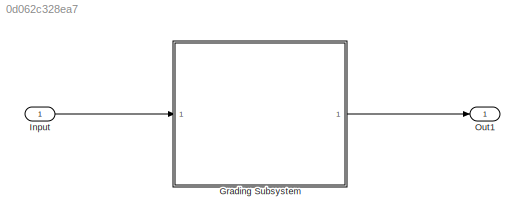
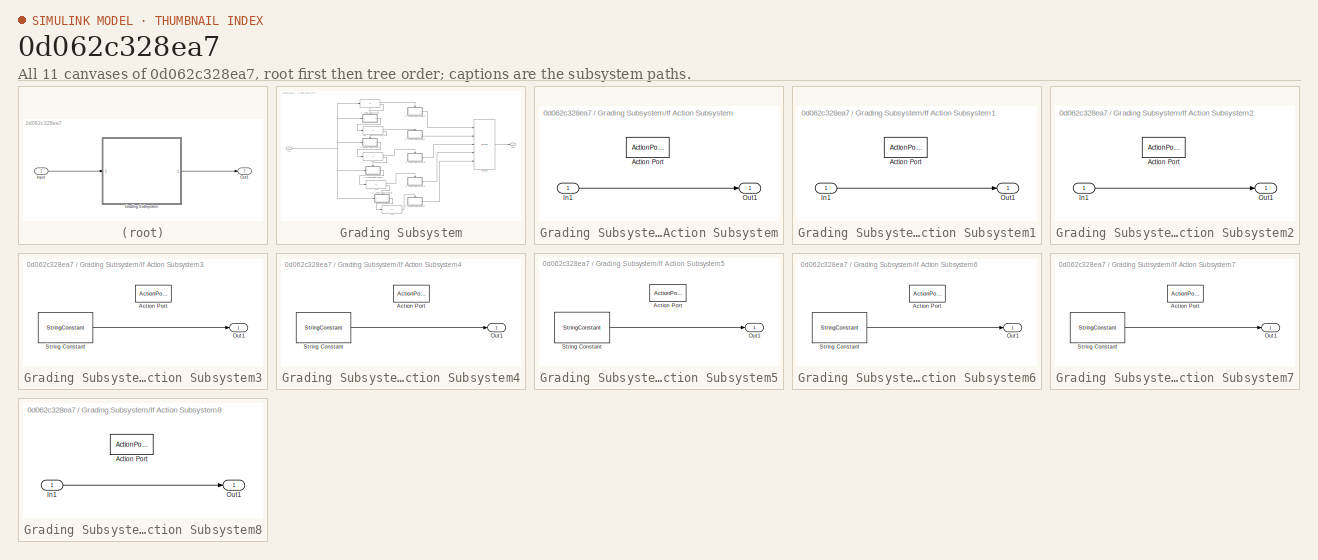
[diagram: thumbnail index - all 11 canvases of the model, root first then tree order]
MODEL slx_0d062c328ea7
KIND model
CONFIG AbsTol = auto
CONFIG EnableMultiTasking = off
CONFIG FixedStep = auto
CONFIG MaxStep = auto
CONFIG MinStep = auto
CONFIG RelTol = 1e-3
CONFIG SampleTimeConstraint = Unconstrained
CONFIG SolverName = VariableStepAuto
CONFIG StartTime = 0.0
CONFIG StopTime = 10.0
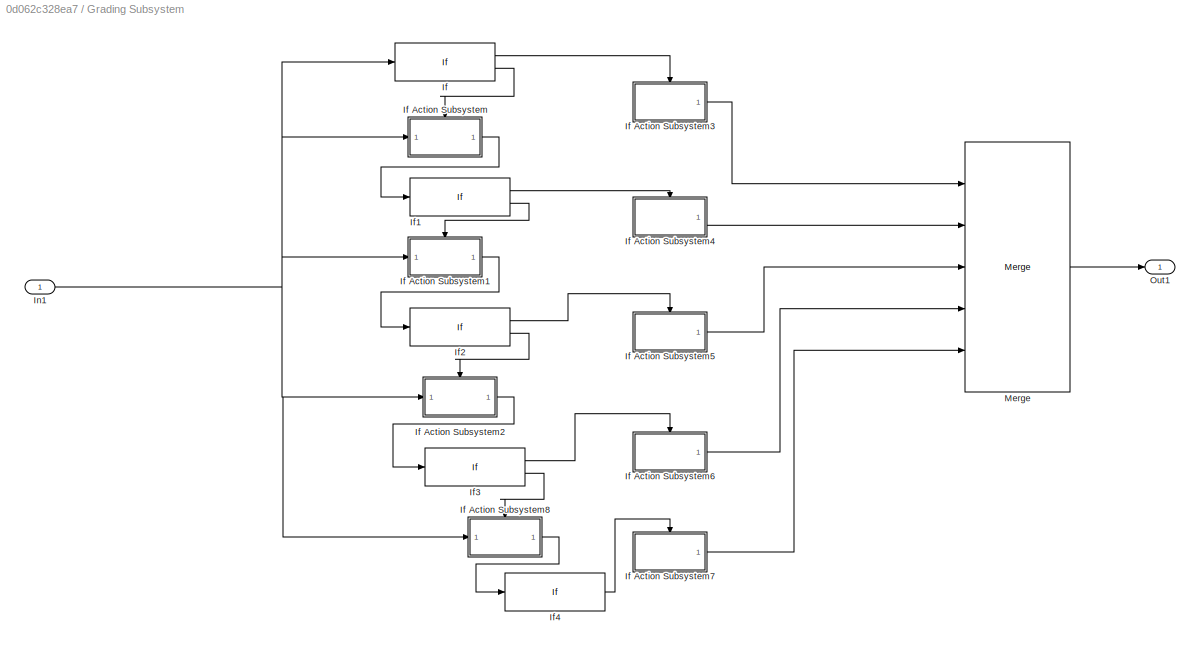
BLOCK [SubSystem] Grading Subsystem
  Ports = [1, 1]
  RequestExecContextInheritance = off
BLOCK [If] Grading Subsystem/If
  IfExpression = u1 >=90
  Ports = [1, 2]
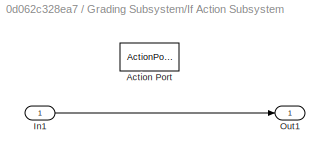
BLOCK [SubSystem] Grading Subsystem/If Action Subsystem
  Ports = [1, 1, 0, 0, 0, 0, 0, 1]
  RequestExecContextInheritance = off
  TreatAsAtomicUnit = on
BLOCK [ActionPort] Grading Subsystem/If Action Subsystem/Action Port
  ActionPortLabel = else
BLOCK [Inport] Grading Subsystem/If Action Subsystem/In1
BLOCK [Outport] Grading Subsystem/If Action Subsystem/Out1
BLOCK [SubSystem] Grading Subsystem/If Action Subsystem1
  Ports = [1, 1, 0, 0, 0, 0, 0, 1]
  RequestExecContextInheritance = off
  TreatAsAtomicUnit = on
BLOCK [ActionPort] Grading Subsystem/If Action Subsystem1/Action Port
  ActionPortLabel = else
BLOCK [Inport] Grading Subsystem/If Action Subsystem1/In1
BLOCK [Outport] Grading Subsystem/If Action Subsystem1/Out1
BLOCK [SubSystem] Grading Subsystem/If Action Subsystem2
  Ports = [1, 1, 0, 0, 0, 0, 0, 1]
  RequestExecContextInheritance = off
  TreatAsAtomicUnit = on
BLOCK [ActionPort] Grading Subsystem/If Action Subsystem2/Action Port
  ActionPortLabel = else
BLOCK [Inport] Grading Subsystem/If Action Subsystem2/In1
BLOCK [Outport] Grading Subsystem/If Action Subsystem2/Out1
BLOCK [SubSystem] Grading Subsystem/If Action Subsystem3
  Ports = [0, 1, 0, 0, 0, 0, 0, 1]
  RequestExecContextInheritance = off
  TreatAsAtomicUnit = on
BLOCK [ActionPort] Grading Subsystem/If Action Subsystem3/Action Port
  ActionPortLabel = if(u1 >=90)
BLOCK [Outport] Grading Subsystem/If Action Subsystem3/Out1
BLOCK [StringConstant] Grading Subsystem/If Action Subsystem3/String Constant
  String = "A"
BLOCK [SubSystem] Grading Subsystem/If Action Subsystem4
  Ports = [0, 1, 0, 0, 0, 0, 0, 1]
  RequestExecContextInheritance = off
  TreatAsAtomicUnit = on
BLOCK [ActionPort] Grading Subsystem/If Action Subsystem4/Action Port
  ActionPortLabel = if((u1 >= 80)&(u1<90))
BLOCK [Outport] Grading Subsystem/If Action Subsystem4/Out1
BLOCK [StringConstant] Grading Subsystem/If Action Subsystem4/String Constant
  String = "B"
BLOCK [SubSystem] Grading Subsystem/If Action Subsystem5
  Ports = [0, 1, 0, 0, 0, 0, 0, 1]
  RequestExecContextInheritance = off
  TreatAsAtomicUnit = on
BLOCK [ActionPort] Grading Subsystem/If Action Subsystem5/Action Port
  ActionPortLabel = if((u1 >=70)&(u1<80))
BLOCK [Outport] Grading Subsystem/If Action Subsystem5/Out1
BLOCK [StringConstant] Grading Subsystem/If Action Subsystem5/String Constant
  String = "C"
BLOCK [SubSystem] Grading Subsystem/If Action Subsystem6
  Ports = [0, 1, 0, 0, 0, 0, 0, 1]
  RequestExecContextInheritance = off
  TreatAsAtomicUnit = on
BLOCK [ActionPort] Grading Subsystem/If Action Subsystem6/Action Port
  ActionPortLabel = if((u1<70)&(u1 >= 60))
BLOCK [Outport] Grading Subsystem/If Action Subsystem6/Out1
BLOCK [StringConstant] Grading Subsystem/If Action Subsystem6/String Constant
  String = "D"
BLOCK [SubSystem] Grading Subsystem/If Action Subsystem7
  Ports = [0, 1, 0, 0, 0, 0, 0, 1]
  RequestExecContextInheritance = off
  TreatAsAtomicUnit = on
BLOCK [ActionPort] Grading Subsystem/If Action Subsystem7/Action Port
  ActionPortLabel = if(u1<60)
BLOCK [Outport] Grading Subsystem/If Action Subsystem7/Out1
BLOCK [StringConstant] Grading Subsystem/If Action Subsystem7/String Constant
  String = "F"
BLOCK [SubSystem] Grading Subsystem/If Action Subsystem8
  Ports = [1, 1, 0, 0, 0, 0, 0, 1]
  RequestExecContextInheritance = off
  TreatAsAtomicUnit = on
BLOCK [ActionPort] Grading Subsystem/If Action Subsystem8/Action Port
  ActionPortLabel = else
BLOCK [Inport] Grading Subsystem/If Action Subsystem8/In1
BLOCK [Outport] Grading Subsystem/If Action Subsystem8/Out1
BLOCK [If] Grading Subsystem/If1
  IfExpression = (u1 >= 80)&(u1<90)
  Ports = [1, 2]
BLOCK [If] Grading Subsystem/If2
  IfExpression = (u1 >=70)&(u1<80)
  Ports = [1, 2]
BLOCK [If] Grading Subsystem/If3
  IfExpression = (u1<70)&(u1 >= 60)
  Ports = [1, 2]
BLOCK [If] Grading Subsystem/If4
  IfExpression = u1<60
  Ports = [1, 1]
  ShowElse = off
BLOCK [Inport] Grading Subsystem/In1
BLOCK [Merge] Grading Subsystem/Merge
  Inputs = 5
  Ports = [5, 1]
BLOCK [Outport] Grading Subsystem/Out1
BLOCK [Inport] Input
  OutDataTypeStr = int8
  OutMax = 100
BLOCK [Outport] Out1
LINE Grading Subsystem/If Action Subsystem/In1:1 -> Grading Subsystem/If Action Subsystem/Out1:1
LINE Grading Subsystem/If Action Subsystem1/In1:1 -> Grading Subsystem/If Action Subsystem1/Out1:1
LINE Grading Subsystem/If Action Subsystem1:1 -> Grading Subsystem/If2:1
LINE Grading Subsystem/If Action Subsystem2/In1:1 -> Grading Subsystem/If Action Subsystem2/Out1:1
LINE Grading Subsystem/If Action Subsystem2:1 -> Grading Subsystem/If3:1
LINE Grading Subsystem/If Action Subsystem3/String Constant:1 -> Grading Subsystem/If Action Subsystem3/Out1:1
LINE Grading Subsystem/If Action Subsystem3:1 -> Grading Subsystem/Merge:1
LINE Grading Subsystem/If Action Subsystem4/String Constant:1 -> Grading Subsystem/If Action Subsystem4/Out1:1
LINE Grading Subsystem/If Action Subsystem4:1 -> Grading Subsystem/Merge:2
LINE Grading Subsystem/If Action Subsystem5/String Constant:1 -> Grading Subsystem/If Action Subsystem5/Out1:1
LINE Grading Subsystem/If Action Subsystem5:1 -> Grading Subsystem/Merge:3
LINE Grading Subsystem/If Action Subsystem6/String Constant:1 -> Grading Subsystem/If Action Subsystem6/Out1:1
LINE Grading Subsystem/If Action Subsystem6:1 -> Grading Subsystem/Merge:4
LINE Grading Subsystem/If Action Subsystem7/String Constant:1 -> Grading Subsystem/If Action Subsystem7/Out1:1
LINE Grading Subsystem/If Action Subsystem7:1 -> Grading Subsystem/Merge:5
LINE Grading Subsystem/If Action Subsystem8/In1:1 -> Grading Subsystem/If Action Subsystem8/Out1:1
LINE Grading Subsystem/If Action Subsystem8:1 -> Grading Subsystem/If4:1
LINE Grading Subsystem/If Action Subsystem:1 -> Grading Subsystem/If1:1
LINE Grading Subsystem/If1:1 -> Grading Subsystem/If Action Subsystem4:ifaction
LINE Grading Subsystem/If1:2 -> Grading Subsystem/If Action Subsystem1:ifaction
LINE Grading Subsystem/If2:1 -> Grading Subsystem/If Action Subsystem5:ifaction
LINE Grading Subsystem/If2:2 -> Grading Subsystem/If Action Subsystem2:ifaction
LINE Grading Subsystem/If3:1 -> Grading Subsystem/If Action Subsystem6:ifaction
LINE Grading Subsystem/If3:2 -> Grading Subsystem/If Action Subsystem8:ifaction
LINE Grading Subsystem/If4:1 -> Grading Subsystem/If Action Subsystem7:ifaction
LINE Grading Subsystem/If:1 -> Grading Subsystem/If Action Subsystem3:ifaction
LINE Grading Subsystem/If:2 -> Grading Subsystem/If Action Subsystem:ifaction
NET Grading Subsystem/In1:1 -> Grading Subsystem/If Action Subsystem1:1, Grading Subsystem/If Action Subsystem2:1, Grading Subsystem/If Action Subsystem8:1, Grading Subsystem/If Action Subsystem:1, Grading Subsystem/If:1
LINE Grading Subsystem/Merge:1 -> Grading Subsystem/Out1:1
LINE Grading Subsystem:1 -> Out1:1
LINE Input:1 -> Grading Subsystem:1
note: NET lines group one-source signal fan-out (src -> all destinations, sorted); 1:1 wires keep LINE
